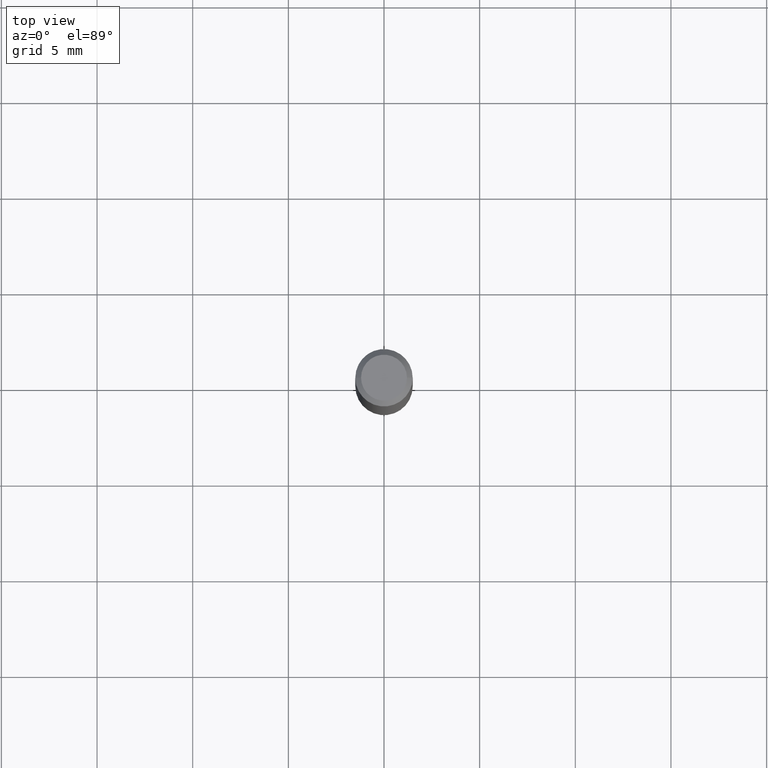
[diagram: clean part render]
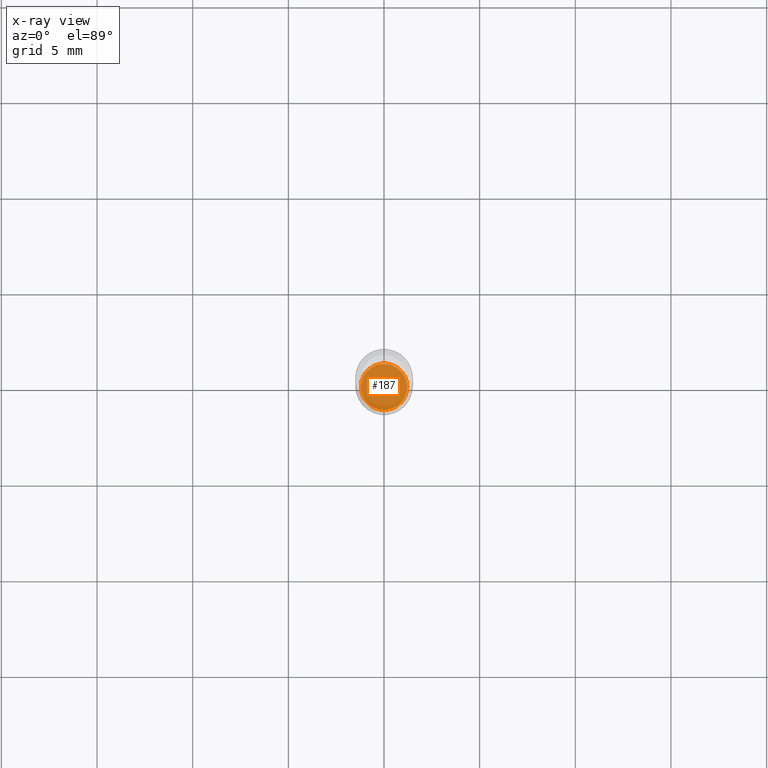
[diagram: x-ray — body ghosted, one internal face saturated and labeled with its STEP entity id]
A machine part, top view, then the same camera in x-ray: the body is ghosted and one INTERNAL B-rep face — a face not visible from any outside direction — is saturated and labeled: STEP entity #187.
In plain terms, the highlighted planar face has unit normal (-0, 0, 1).
Its self-contained STEP definition (entity closure, byte-faithful):
#3 = PLANE ( 'NONE',  #188 ) ;
#37 = ORIENTED_EDGE ( 'NONE', *, *, #432, .F. ) ;
#50 = CARTESIAN_POINT ( 'NONE',  ( 2.676565608369631794E-29, -3.821426325363822773E-15, -1.094499999999999806 ) ) ;
#61 = CIRCLE ( 'NONE', #398, 0.04775000000000000078 ) ;
#80 = CARTESIAN_POINT ( 'NONE',  ( 2.676565608369631794E-29, -3.821426325363822773E-15, -1.094499999999999806 ) ) ;
#83 = DIRECTION ( 'NONE',  ( 1.000000000000000000, -6.982962677686267499E-15, 0.000000000000000000 ) ) ;
#111 = ORIENTED_EDGE ( 'NONE', *, *, #175, .F. ) ;
#115 = FACE_OUTER_BOUND ( 'NONE', #161, .T. ) ;
#161 = EDGE_LOOP ( 'NONE', ( #37, #111 ) ) ;
#175 = EDGE_CURVE ( 'NONE', #359, #203, #242, .T. ) ;
#187 = ADVANCED_FACE ( 'NONE', ( #115 ), #3, .F. ) ;
#188 = AXIS2_PLACEMENT_3D ( 'NONE', #401, #285, #341 ) ;
#203 = VERTEX_POINT ( 'NONE', #254 ) ;
#226 = DIRECTION ( 'NONE',  ( -2.445468806185136597E-29, 3.491481338843145583E-15, 1.000000000000000000 ) ) ;
#242 = CIRCLE ( 'NONE', #298, 0.04775000000000000078 ) ;
#254 = CARTESIAN_POINT ( 'NONE',  ( 0.04775000000000000078, -4.154862793223341788E-15, -1.094499999999999806 ) ) ;
#285 = DIRECTION ( 'NONE',  ( -2.438088387897960049E-29, 3.491481338843145188E-15, 1.000000000000000000 ) ) ;
#298 = AXIS2_PLACEMENT_3D ( 'NONE', #50, #347, #306 ) ;
#306 = DIRECTION ( 'NONE',  ( 1.000000000000000000, -6.982962677686267499E-15, 0.000000000000000000 ) ) ;
#341 = DIRECTION ( 'NONE',  ( 1.000000000000000000, -6.982962677686265922E-15, 4.876176775795935793E-29 ) ) ;
#347 = DIRECTION ( 'NONE',  ( -2.445468806185136597E-29, 3.491481338843145583E-15, 1.000000000000000000 ) ) ;
#359 = VERTEX_POINT ( 'NONE', #446 ) ;
#398 = AXIS2_PLACEMENT_3D ( 'NONE', #80, #226, #83 ) ;
#401 = CARTESIAN_POINT ( 'NONE',  ( 2.676565608369631794E-29, -3.821426325363822773E-15, -1.094499999999999806 ) ) ;
#432 = EDGE_CURVE ( 'NONE', #203, #359, #61, .T. ) ;
#446 = CARTESIAN_POINT ( 'NONE',  ( -0.04775000000000000078, -3.479492941864263629E-15, -1.094499999999999806 ) ) ;